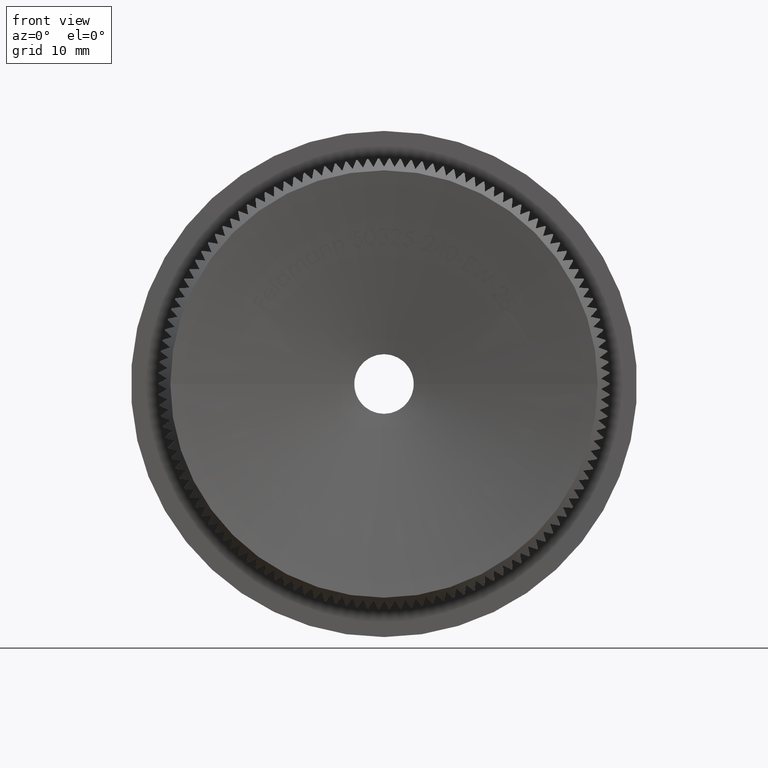
[diagram: clean part render]
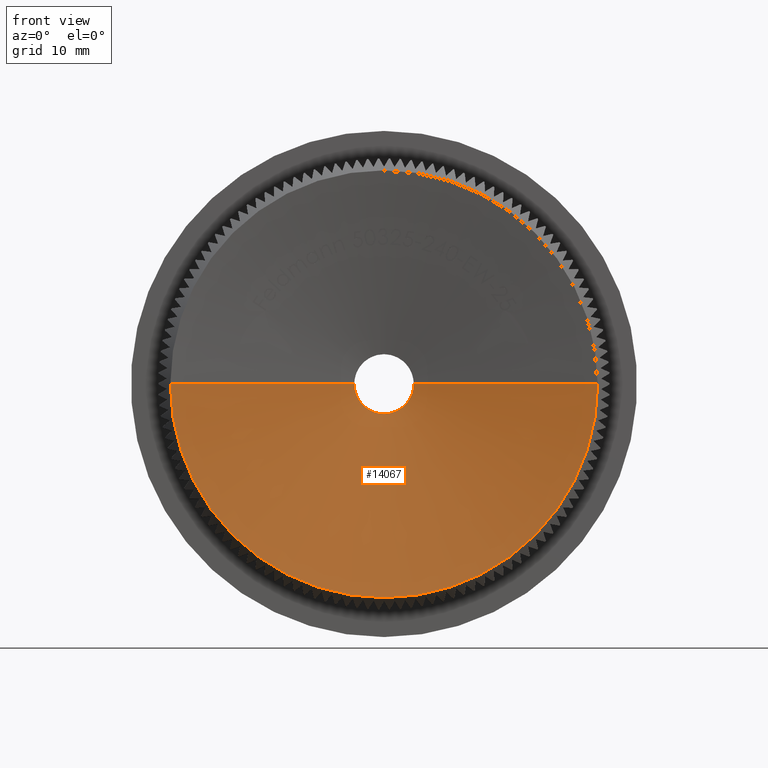
[diagram: same view with one face highlighted and labeled with its STEP entity id]
A machine part, front view. The second image highlights one B-rep face of the part: STEP entity #14067.
In plain terms, the highlighted conical surface has half-angle 80 deg.
Its self-contained STEP definition (entity closure, byte-faithful):
#61 = DIRECTION ( 'NONE',  ( 1.164011347856539600E-017, 1.000000000000000000, 0.0000000000000000000 ) ) ;
#397 = FACE_OUTER_BOUND ( 'NONE', #1744, .T. ) ;
#709 = AXIS2_PLACEMENT_3D ( 'NONE', #22893, #61, #28128 ) ;
#1028 = ORIENTED_EDGE ( 'NONE', *, *, #24377, .T. ) ;
#1482 = CIRCLE ( 'NONE', #26752, 17.89999999999999100 ) ;
#1744 = EDGE_LOOP ( 'NONE', ( #25938, #14762, #1028, #4608, #23343, #25940 ) ) ;
#1751 = DIRECTION ( 'NONE',  ( 1.000000000000000000, 0.0000000000000000000, 0.0000000000000000000 ) ) ;
#3728 = CONICAL_SURFACE ( 'NONE', #7262, 17.89999999999999100, 1.396263401595470700 ) ;
#3917 = CARTESIAN_POINT ( 'NONE',  ( 2.253350110431129600E-015, 8.237430478378654700E-016, -17.89999999999999100 ) ) ;
#4152 = DIRECTION ( 'NONE',  ( -1.164011347856539600E-017, -1.000000000000000000, -0.0000000000000000000 ) ) ;
#4608 = ORIENTED_EDGE ( 'NONE', *, *, #21146, .T. ) ;
#7176 = EDGE_CURVE ( 'NONE', #22063, #21055, #22045, .T. ) ;
#7262 = AXIS2_PLACEMENT_3D ( 'NONE', #7311, #7724, #28959 ) ;
#7311 = CARTESIAN_POINT ( 'NONE',  ( 9.588462554012077200E-033, 8.237430478378654700E-016, 0.0000000000000000000 ) ) ;
#7583 = DIRECTION ( 'NONE',  ( -0.9848077530122093500, -0.1736481776669234500, 1.206041662501899300E-016 ) ) ;
#7724 = DIRECTION ( 'NONE',  ( -1.164011347856539600E-017, -1.000000000000000000, -0.0000000000000000000 ) ) ;
#7880 = CARTESIAN_POINT ( 'NONE',  ( 17.89999999999999100, 6.153850165715449700E-016, 0.0000000000000000000 ) ) ;
#7935 = VERTEX_POINT ( 'NONE', #17882 ) ;
#9538 = CARTESIAN_POINT ( 'NONE',  ( 9.588462554012077200E-033, 8.237430478378654700E-016, 0.0000000000000000000 ) ) ;
#10958 = DIRECTION ( 'NONE',  ( 1.164011347856539600E-017, 1.000000000000000000, 0.0000000000000000000 ) ) ;
#11731 = EDGE_CURVE ( 'NONE', #26775, #24717, #28892, .T. ) ;
#12099 = EDGE_CURVE ( 'NONE', #26775, #21055, #27408, .T. ) ;
#12906 = DIRECTION ( 'NONE',  ( 0.9848077530122093500, -0.1736481776669234500, 0.0000000000000000000 ) ) ;
#13217 = CARTESIAN_POINT ( 'NONE',  ( 3.160797739760058900E-017, 2.715435502910248400, 0.0000000000000000000 ) ) ;
#13440 = CARTESIAN_POINT ( 'NONE',  ( 9.588462554012077200E-033, 8.237430478378654700E-016, 0.0000000000000000000 ) ) ;
#13532 = DIRECTION ( 'NONE',  ( 1.000000000000000000, -1.164011347856539200E-017, 0.0000000000000000000 ) ) ;
#13575 = CARTESIAN_POINT ( 'NONE',  ( 17.89999999999999100, 6.153850165715449700E-016, 0.0000000000000000000 ) ) ;
#13704 = VERTEX_POINT ( 'NONE', #26535 ) ;
#14067 = ADVANCED_FACE ( 'NONE', ( #397 ), #3728, .F. ) ;
#14762 = ORIENTED_EDGE ( 'NONE', *, *, #26847, .T. ) ;
#17882 = CARTESIAN_POINT ( 'NONE',  ( -2.500000000000000000, 2.715435502910248400, 1.249139735130300000E-015 ) ) ;
#18000 = AXIS2_PLACEMENT_3D ( 'NONE', #13440, #4152, #13532 ) ;
#18366 = VECTOR ( 'NONE', #7583, 999.9999999999998900 ) ;
#18374 = CARTESIAN_POINT ( 'NONE',  ( 3.061616997868383100E-016, 2.715435502910248400, -2.500000000000000000 ) ) ;
#20171 = CIRCLE ( 'NONE', #709, 2.500000000000000000 ) ;
#21055 = VERTEX_POINT ( 'NONE', #13575 ) ;
#21146 = EDGE_CURVE ( 'NONE', #13704, #22063, #1482, .T. ) ;
#21728 = CARTESIAN_POINT ( 'NONE',  ( -17.89999999999999100, 1.032101079104185900E-015, 2.192117770473761300E-015 ) ) ;
#21886 = VECTOR ( 'NONE', #12906, 999.9999999999998900 ) ;
#22045 = CIRCLE ( 'NONE', #18000, 17.89999999999999100 ) ;
#22063 = VERTEX_POINT ( 'NONE', #3917 ) ;
#22893 = CARTESIAN_POINT ( 'NONE',  ( 3.160797739760058900E-017, 2.715435502910248400, 0.0000000000000000000 ) ) ;
#23196 = LINE ( 'NONE', #21728, #18366 ) ;
#23343 = ORIENTED_EDGE ( 'NONE', *, *, #7176, .T. ) ;
#24073 = CARTESIAN_POINT ( 'NONE',  ( 2.500000000000000000, 2.715435502910248400, 0.0000000000000000000 ) ) ;
#24377 = EDGE_CURVE ( 'NONE', #7935, #13704, #23196, .T. ) ;
#24717 = VERTEX_POINT ( 'NONE', #18374 ) ;
#25938 = ORIENTED_EDGE ( 'NONE', *, *, #11731, .T. ) ;
#25940 = ORIENTED_EDGE ( 'NONE', *, *, #12099, .F. ) ;
#26535 = CARTESIAN_POINT ( 'NONE',  ( -17.89999999999999100, 1.032101079104185900E-015, 2.192117770473761300E-015 ) ) ;
#26752 = AXIS2_PLACEMENT_3D ( 'NONE', #9538, #28507, #28305 ) ;
#26775 = VERTEX_POINT ( 'NONE', #24073 ) ;
#26847 = EDGE_CURVE ( 'NONE', #24717, #7935, #20171, .T. ) ;
#27408 = LINE ( 'NONE', #7880, #21886 ) ;
#28128 = DIRECTION ( 'NONE',  ( 1.000000000000000000, 0.0000000000000000000, 0.0000000000000000000 ) ) ;
#28305 = DIRECTION ( 'NONE',  ( 1.000000000000000000, -1.164011347856539200E-017, 0.0000000000000000000 ) ) ;
#28346 = AXIS2_PLACEMENT_3D ( 'NONE', #13217, #10958, #1751 ) ;
#28507 = DIRECTION ( 'NONE',  ( -1.164011347856539600E-017, -1.000000000000000000, -0.0000000000000000000 ) ) ;
#28892 = CIRCLE ( 'NONE', #28346, 2.500000000000000000 ) ;
#28959 = DIRECTION ( 'NONE',  ( 1.000000000000000000, -1.164011347856539200E-017, 0.0000000000000000000 ) ) ;